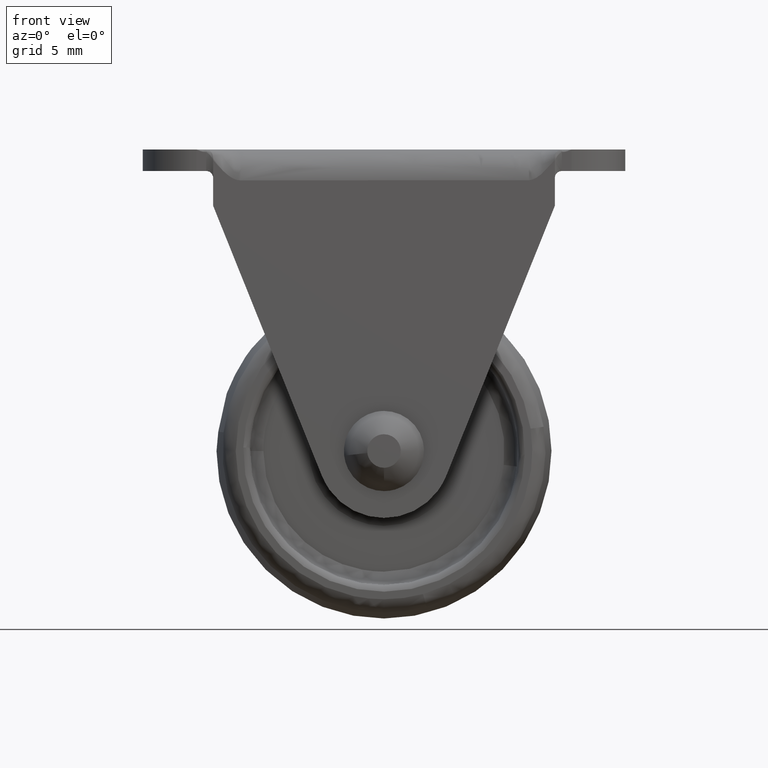
[diagram: clean part render]
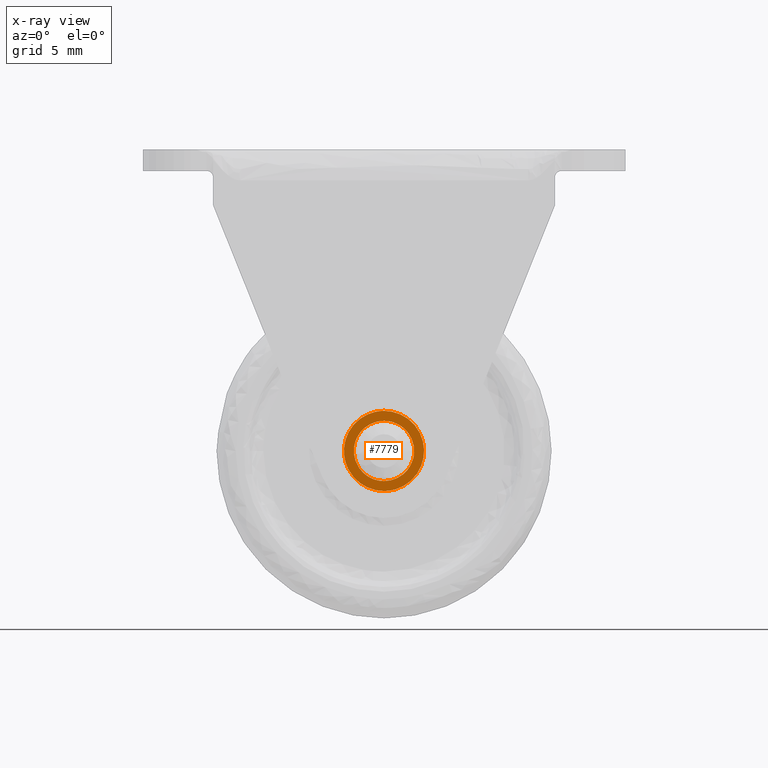
[diagram: x-ray — body ghosted, one internal face saturated and labeled with its STEP entity id]
A machine part, front view, then the same camera in x-ray: the body is ghosted and one INTERNAL B-rep face — a face not visible from any outside direction — is saturated and labeled: STEP entity #7779.
In plain terms, the highlighted face is a freeform B-spline surface patch.
Its self-contained STEP definition (entity closure, byte-faithful):
#7092=CARTESIAN_POINT('',(-2.234271434310410,-9.150002000000001,0.265577028043656));
#7093=VERTEX_POINT('',#7092);
#7094=CARTESIAN_POINT('',(0.0,-9.150002000000001,-2.250000000000000));
#7095=VERTEX_POINT('',#7094);
#7096=CARTESIAN_POINT('',(-2.234271434310410,-9.150002000000001,0.265577028043656));
#7097=CARTESIAN_POINT('',(-2.250000000000000,-9.150002000000001,0.133254269283445));
#7098=CARTESIAN_POINT('',(-2.250000000000000,-9.150002000000001,0.0));
#7099=CARTESIAN_POINT('',(-2.250000000000000,-9.150002000000001,-2.250000000000000));
#7100=CARTESIAN_POINT('',(0.0,-9.150002000000001,-2.250000000000000));
#7108=(BOUNDED_CURVE()B_SPLINE_CURVE(2,(#7096,#7097,#7098,#7099,#7100),.UNSPECIFIED.,.F.,.U.)B_SPLINE_CURVE_WITH_KNOTS((3,2,3),(0.229562473505667,0.250000000000000,0.500000000000000),.UNSPECIFIED.)CURVE()GEOMETRIC_REPRESENTATION_ITEM()RATIONAL_B_SPLINE_CURVE((0.956026754168330,0.976055948321959,1.0,0.707106781186547,1.0))REPRESENTATION_ITEM(''));
#7109=EDGE_CURVE('',#7093,#7095,#7108,.T.);
#7150=CARTESIAN_POINT('',(2.245803418097605,-9.150002000000008,-0.137357224990687));
#7151=VERTEX_POINT('',#7150);
#7157=CARTESIAN_POINT('',(0.0,-9.150002000000001,-2.250000000000000));
#7158=CARTESIAN_POINT('',(2.116590528567082,-9.150002000000002,-2.250000000000000));
#7159=CARTESIAN_POINT('',(2.245803418097605,-9.150002000000008,-0.137357224990687));
#7167=(BOUNDED_CURVE()B_SPLINE_CURVE(2,(#7157,#7158,#7159),.UNSPECIFIED.,.F.,.U.)B_SPLINE_CURVE_WITH_KNOTS((3,3),(0.500000000000000,0.739333115055519),.UNSPECIFIED.)CURVE()GEOMETRIC_REPRESENTATION_ITEM()RATIONAL_B_SPLINE_CURVE((1.0,0.719603814250955,0.976072369181948))REPRESENTATION_ITEM(''));
#7168=EDGE_CURVE('',#7095,#7151,#7167,.T.);
#7191=CARTESIAN_POINT('',(0.0,-9.150002000000001,2.250000000000000));
#7192=VERTEX_POINT('',#7191);
#7193=CARTESIAN_POINT('',(0.0,-9.150002000000001,2.250000000000000));
#7194=CARTESIAN_POINT('',(-1.998392683271773,-9.150002000000001,2.250000000000000));
#7195=CARTESIAN_POINT('',(-2.234271434310410,-9.150002000000001,0.265577028043656));
#7203=(BOUNDED_CURVE()B_SPLINE_CURVE(2,(#7193,#7194,#7195),.UNSPECIFIED.,.F.,.U.)B_SPLINE_CURVE_WITH_KNOTS((3,3),(0.0,0.229562473505667),.UNSPECIFIED.)CURVE()GEOMETRIC_REPRESENTATION_ITEM()RATIONAL_B_SPLINE_CURVE((1.0,0.731050832864589,0.956026754168330))REPRESENTATION_ITEM(''));
#7204=EDGE_CURVE('',#7192,#7093,#7203,.T.);
#7206=CARTESIAN_POINT('',(2.245803418097605,-9.150002000000008,-0.137357224990687));
#7207=CARTESIAN_POINT('',(2.250000000000000,-9.150002000000001,-0.068742720152093));
#7208=CARTESIAN_POINT('',(2.250000000000000,-9.150002000000001,0.0));
#7209=CARTESIAN_POINT('',(2.250000000000000,-9.150002000000001,2.250000000000000));
#7210=CARTESIAN_POINT('',(0.0,-9.150002000000001,2.250000000000000));
#7218=(BOUNDED_CURVE()B_SPLINE_CURVE(2,(#7206,#7207,#7208,#7209,#7210),.UNSPECIFIED.,.F.,.U.)B_SPLINE_CURVE_WITH_KNOTS((3,2,3),(0.739333115055519,0.750000000000000,1.0),.UNSPECIFIED.)CURVE()GEOMETRIC_REPRESENTATION_ITEM()RATIONAL_B_SPLINE_CURVE((0.976072369181948,0.987502966935592,1.0,0.707106781186547,1.0))REPRESENTATION_ITEM(''));
#7219=EDGE_CURVE('',#7151,#7192,#7218,.T.);
#7498=CARTESIAN_POINT('',(0.0,-9.150002000006714,-2.991828621563486));
#7499=VERTEX_POINT('',#7498);
#7513=CARTESIAN_POINT('',(0.0,-9.150002000000001,2.991828621566933));
#7514=VERTEX_POINT('',#7513);
#7515=CARTESIAN_POINT('',(0.0,-9.150002000000001,2.991828621566933));
#7516=CARTESIAN_POINT('',(2.991828621566929,-9.150002000000002,2.991828621566932));
#7517=CARTESIAN_POINT('',(2.991828621566930,-9.150002000000001,2.418598E-015));
#7518=CARTESIAN_POINT('',(2.991828621566929,-9.150002000000002,-2.991828621566928));
#7519=CARTESIAN_POINT('',(0.0,-9.150002000006714,-2.991828621563486));
#7527=(BOUNDED_CURVE()B_SPLINE_CURVE(2,(#7515,#7516,#7517,#7518,#7519),.UNSPECIFIED.,.F.,.U.)B_SPLINE_CURVE_WITH_KNOTS((3,2,3),(0.0,0.250000000000000,0.500000000000000),.UNSPECIFIED.)CURVE()GEOMETRIC_REPRESENTATION_ITEM()RATIONAL_B_SPLINE_CURVE((1.0,0.707106781186548,1.0,0.707106781186548,1.0))REPRESENTATION_ITEM(''));
#7528=EDGE_CURVE('',#7514,#7499,#7527,.T.);
#7530=CARTESIAN_POINT('',(-2.971818191050077,-9.150001999990106,-0.345449186134890));
#7531=VERTEX_POINT('',#7530);
#7532=CARTESIAN_POINT('',(-2.971818191050077,-9.150001999990106,-0.345449186134889));
#7533=CARTESIAN_POINT('',(-2.991828621566930,-9.150002000000001,-0.173304153490091));
#7534=CARTESIAN_POINT('',(-2.991828621566930,-9.150002000000001,2.418598E-015));
#7535=CARTESIAN_POINT('',(-2.991828621566929,-9.150002000000002,2.991828621566932));
#7536=CARTESIAN_POINT('',(0.0,-9.150002000000001,2.991828621566933));
#7544=(BOUNDED_CURVE()B_SPLINE_CURVE(2,(#7532,#7533,#7534,#7535,#7536),.UNSPECIFIED.,.F.,.U.)B_SPLINE_CURVE_WITH_KNOTS((3,2,3),(0.729999999992441,0.750000000000000,1.0),.UNSPECIFIED.)CURVE()GEOMETRIC_REPRESENTATION_ITEM()RATIONAL_B_SPLINE_CURVE((0.956886118175782,0.976568542486068,1.0,0.707106781186548,1.0))REPRESENTATION_ITEM(''));
#7545=EDGE_CURVE('',#7531,#7514,#7544,.T.);
#7594=CARTESIAN_POINT('',(0.0,-9.150002000006714,-2.991828621563486));
#7595=CARTESIAN_POINT('',(-2.664198557682004,-9.150002000000001,-2.991828621566927));
#7596=CARTESIAN_POINT('',(-2.971818191050078,-9.150001999990106,-0.345449186134890));
#7604=(BOUNDED_CURVE()B_SPLINE_CURVE(2,(#7594,#7595,#7596),.UNSPECIFIED.,.F.,.U.)B_SPLINE_CURVE_WITH_KNOTS((3,3),(0.500000000000000,0.729999999992441),.UNSPECIFIED.)CURVE()GEOMETRIC_REPRESENTATION_ITEM()RATIONAL_B_SPLINE_CURVE((1.0,0.730538238700480,0.956886118175781))REPRESENTATION_ITEM(''));
#7605=EDGE_CURVE('',#7499,#7531,#7604,.T.);
#7763=CARTESIAN_POINT('',(-3.290695337274193,-9.150002000000001,3.290712345434101));
#7764=CARTESIAN_POINT('',(-3.290695337274193,-9.150002000000001,-3.290712452426785));
#7765=CARTESIAN_POINT('',(3.290711643252549,-9.150002000000001,3.290712345434101));
#7766=CARTESIAN_POINT('',(3.290711643252549,-9.150002000000001,-3.290712452426785));
#7767=B_SPLINE_SURFACE_WITH_KNOTS('',1,1,((#7763,#7765),(#7764,#7766)),.UNSPECIFIED.,.F.,.F.,.U.,(2,2),(2,2),(0.0,6.581424797860886),(0.0,6.581406980526742),.UNSPECIFIED.);
#7768=ORIENTED_EDGE('',*,*,#7528,.T.);
#7769=ORIENTED_EDGE('',*,*,#7605,.T.);
#7770=ORIENTED_EDGE('',*,*,#7545,.T.);
#7771=EDGE_LOOP('',(#7768,#7769,#7770));
#7772=FACE_OUTER_BOUND('',#7771,.T.);
#7773=ORIENTED_EDGE('',*,*,#7168,.T.);
#7774=ORIENTED_EDGE('',*,*,#7219,.T.);
#7775=ORIENTED_EDGE('',*,*,#7204,.T.);
#7776=ORIENTED_EDGE('',*,*,#7109,.T.);
#7777=EDGE_LOOP('',(#7773,#7774,#7775,#7776));
#7778=FACE_BOUND('',#7777,.T.);
#7779=ADVANCED_FACE('',(#7772,#7778),#7767,.F.);